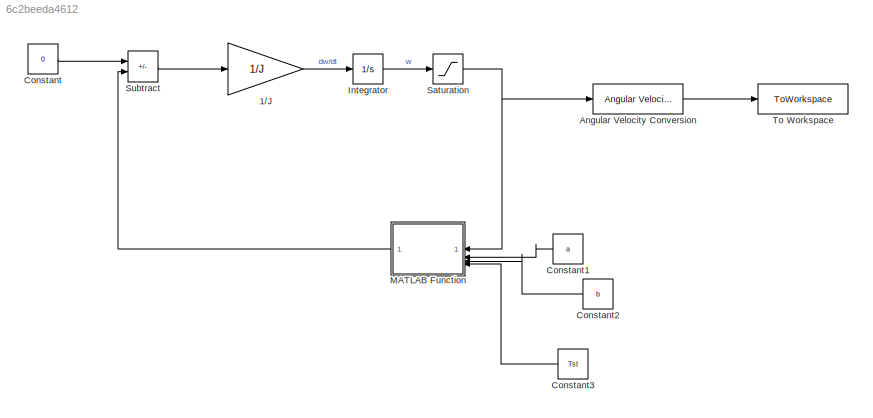
MODEL slx_6c2beeda4612
KIND model
CONFIG AbsTol = 1e-3
CONFIG EnableMultiTasking = on
CONFIG FixedStep = auto
CONFIG MaxStep = auto
CONFIG MinStep = auto
CONFIG RelTol = 1e-3
CONFIG SampleTimeConstraint = Unconstrained
CONFIG SolverName = VariableStepAuto
CONFIG StartTime = 0.0
BLOCK [Gain] 1//J
  Gain = 1/J
BLOCK [Reference] Angular Velocity Conversion  REF=aerolibconvert2/Angular Velocity
Conversion
  SourceBlock = aerolibconvert2/Angular Velocity\nConversion
  SourceType = Angular Velocity Conversion
BLOCK [Constant] Constant
  Value = 0
BLOCK [Constant] Constant1
  NameLocation = top
  Value = a
BLOCK [Constant] Constant2
  NameLocation = top
  Value = b
BLOCK [Constant] Constant3
  NameLocation = top
  Value = Tst
BLOCK [Integrator] Integrator
  InitialCondition = initial
  LimitOutput = on
  LowerSaturationLimit = 0
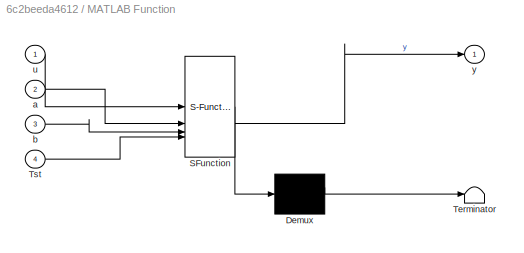
BLOCK [SubSystem] MATLAB Function
  ErrorFcn = Stateflow.Translate.translate
  NameLocation = top
  PermitHierarchicalResolution = ExplicitOnly
  SFBlockType = MATLAB Function
  TreatAsAtomicUnit = on
BLOCK [Demux] MATLAB Function/ Demux 
  Outputs = 1
BLOCK [S-Function] MATLAB Function/ SFunction 
  EnableBusSupport = on
  FunctionName = sf_sfun
  PortCounts = [4 2]
  SFcnIsStateOwnerBlock = off
  SFunctionDeploymentMode = off
  Tag = Stateflow S-Function 2
BLOCK [Terminator] MATLAB Function/ Terminator 
BLOCK [Inport] MATLAB Function/Tst
  Port = 4
BLOCK [Inport] MATLAB Function/a
  Port = 2
BLOCK [Inport] MATLAB Function/b
  Port = 3
BLOCK [Inport] MATLAB Function/u
BLOCK [Outport] MATLAB Function/y
BLOCK [Saturate] Saturation
  LowerLimit = 0
  UpperLimit = inf
BLOCK [Sum] Subtract
  IconShape = rectangular
  Inputs = +-
BLOCK [ToWorkspace] To Workspace
  FixptAsFi = on
  MaxDataPoints = inf
  SampleTime = -1
  SaveFormat = Timeseries
  VariableName = n_coastdown
LINE 1//J:1 -> Integrator:1
LINE Angular Velocity Conversion:1 -> To Workspace:1
LINE Constant1:1 -> MATLAB Function:2
LINE Constant2:1 -> MATLAB Function:3
LINE Constant3:1 -> MATLAB Function:4
LINE Constant:1 -> Subtract:1
LINE Integrator:1 -> Saturation:1
LINE MATLAB Function:1 -> Subtract:2
NET Saturation:1 -> Angular Velocity Conversion:1, MATLAB Function:1
LINE Subtract:1 -> 1//J:1
note: NET lines group one-source signal fan-out (src -> all destinations, sorted); 1:1 wires keep LINE
CHART MATLAB Function states=1 transitions=1
  STATE_LABEL 'eML_blk_kernel()'
  STATE_LABEL 'SCRIPT:\nfunction y = fcn(u,a,b,Tst)\ny=0.0362*(a*u+b)*Tst;\n'
CHART  states=0 transitions=0
